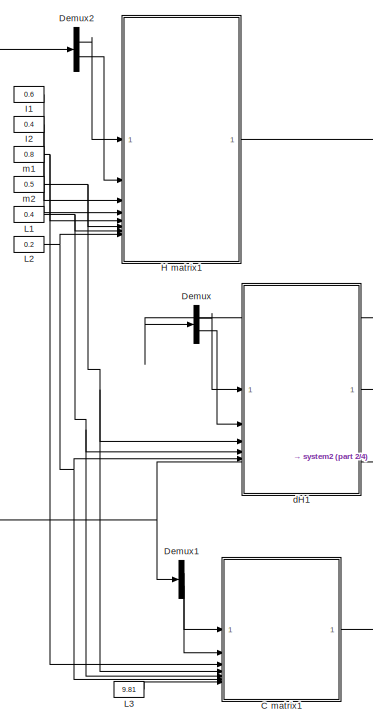
[diagram: root canvas - part 1/4, middle left region]
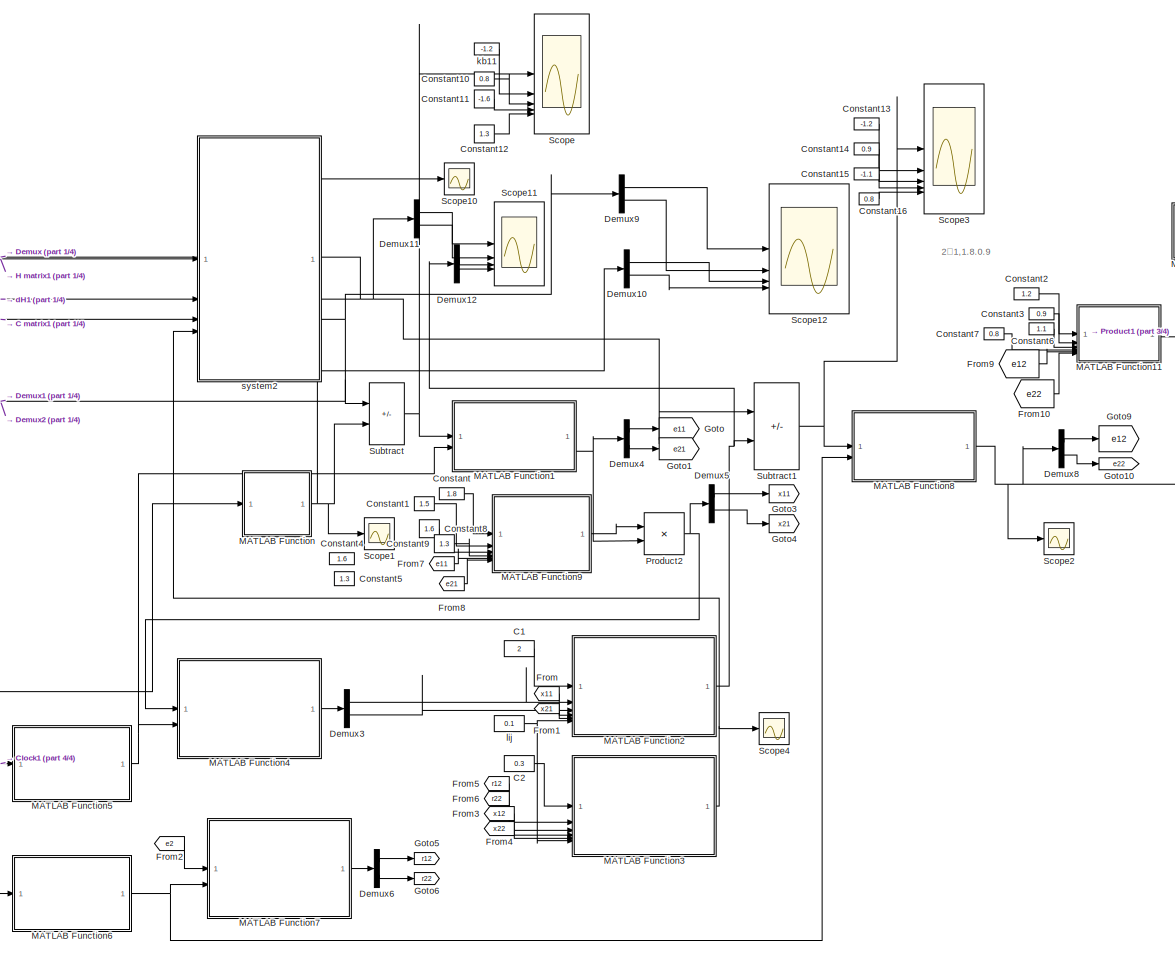
[diagram: root canvas - part 2/4, center side, full height]
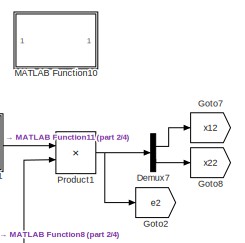
[diagram: root canvas - part 3/4, middle right region]
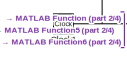
[diagram: root canvas - part 4/4, bottom left region]
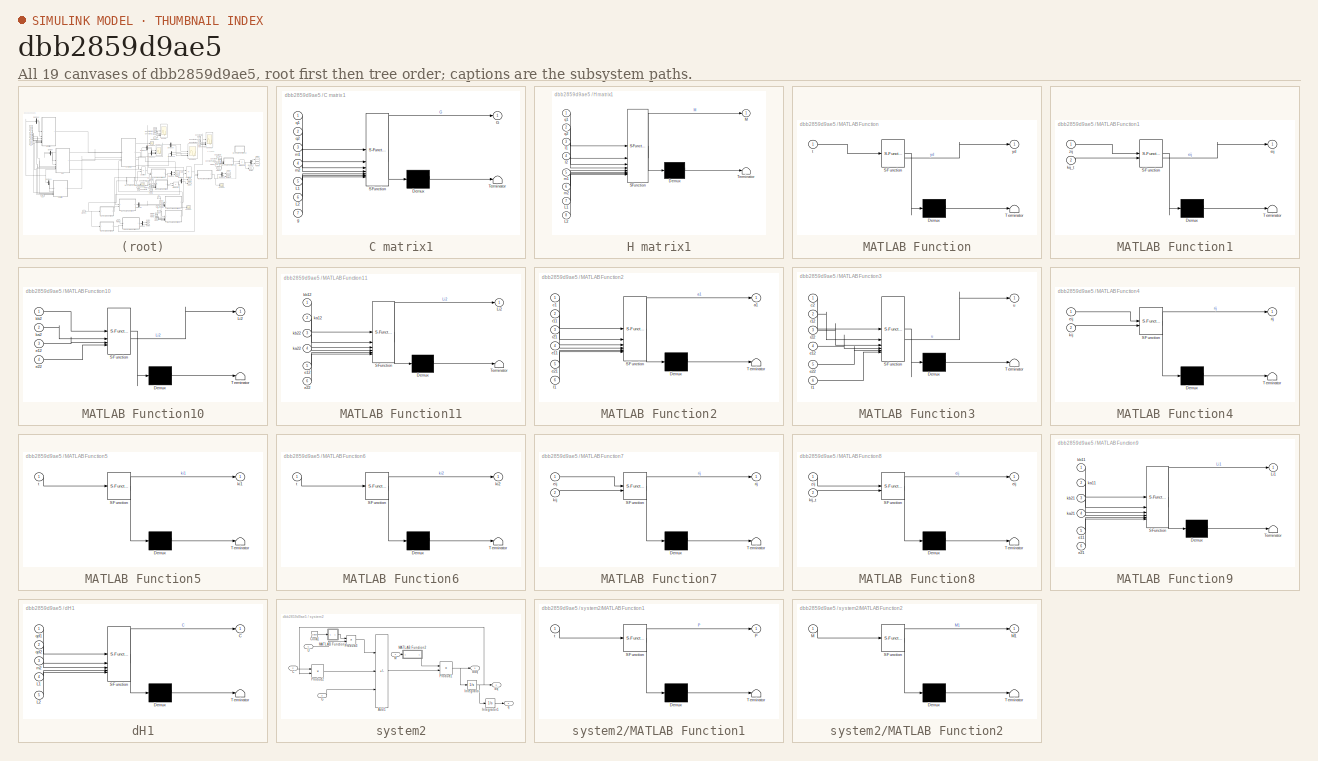
[diagram: thumbnail index - all 19 canvases of the model, root first then tree order]
MODEL slx_dbb2859d9ae5
KIND model
CONFIG AbsTol = auto
CONFIG EnableMultiTasking = off
CONFIG FixedStep = auto
CONFIG MaxStep = auto
CONFIG MinStep = auto
CONFIG RelTol = 1e-3
CONFIG SampleTimeConstraint = Unconstrained
CONFIG SolverName = VariableStepAuto
CONFIG StartTime = 0.0
CONFIG StopTime = 10.0
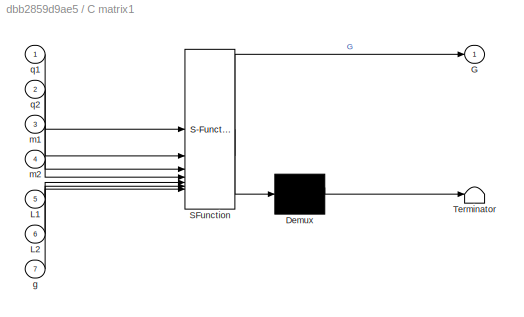
BLOCK [SubSystem] C matrix1
  ErrorFcn = Stateflow.Translate.translate
  PermitHierarchicalResolution = ExplicitOnly
  SFBlockType = MATLAB Function
  TreatAsAtomicUnit = on
BLOCK [Demux] C matrix1/ Demux 
  Outputs = 1
BLOCK [S-Function] C matrix1/ SFunction 
  EnableBusSupport = on
  FunctionName = sf_sfun
  PortCounts = [7 2]
  SFcnIsStateOwnerBlock = off
  SFunctionDeploymentMode = off
  Tag = Stateflow S-Function 10
BLOCK [Terminator] C matrix1/ Terminator 
BLOCK [Outport] C matrix1/G
BLOCK [Inport] C matrix1/L1
  Port = 5
BLOCK [Inport] C matrix1/L2
  Port = 6
BLOCK [Inport] C matrix1/g
  Port = 7
BLOCK [Inport] C matrix1/m1
  Port = 3
BLOCK [Inport] C matrix1/m2
  Port = 4
BLOCK [Inport] C matrix1/q1
BLOCK [Inport] C matrix1/q2
  Port = 2
BLOCK [Constant] C1
  Value = 2
BLOCK [Constant] C2
  Value = 0.3
BLOCK [Clock] Clock1
  Decimation = 30
BLOCK [Constant] Constant
  Value = 1.8
BLOCK [Constant] Constant1
  Value = 1.5
BLOCK [Constant] Constant10
  Value = 0.8
BLOCK [Constant] Constant11
  Value = -1.6
BLOCK [Constant] Constant12
  Value = 1.3
BLOCK [Constant] Constant13
  Value = -1.2
BLOCK [Constant] Constant14
  Value = 0.9
BLOCK [Constant] Constant15
  Value = -1.1
BLOCK [Constant] Constant16
  Value = 0.8
BLOCK [Constant] Constant2
  Value = 1.2
BLOCK [Constant] Constant3
  Value = 0.9
BLOCK [Constant] Constant4
  Commented = on
  Value = 1.6
BLOCK [Constant] Constant5
  Commented = on
  Value = 1.3
BLOCK [Constant] Constant6
  Value = 1.1
BLOCK [Constant] Constant7
  Value = 0.8
BLOCK [Constant] Constant8
  Value = 1.6
BLOCK [Constant] Constant9
  Value = 1.3
BLOCK [Demux] Demux
  Outputs = 2
BLOCK [Demux] Demux1
  Outputs = 2
BLOCK [Demux] Demux10
  Outputs = 2
BLOCK [Demux] Demux11
  Outputs = 2
BLOCK [Demux] Demux12
  Outputs = 2
BLOCK [Demux] Demux2
  Outputs = 2
BLOCK [Demux] Demux3
  Outputs = 2
BLOCK [Demux] Demux4
  Outputs = 2
BLOCK [Demux] Demux5
  Outputs = 2
BLOCK [Demux] Demux6
  Outputs = 2
BLOCK [Demux] Demux7
  Outputs = 2
BLOCK [Demux] Demux8
  Outputs = 2
BLOCK [Demux] Demux9
  Outputs = 2
BLOCK [From] From
  GotoTag = x11
BLOCK [From] From1
  GotoTag = x21
BLOCK [From] From10
  GotoTag = e22
BLOCK [From] From2
  GotoTag = e2
BLOCK [From] From3
  GotoTag = x12
BLOCK [From] From4
  GotoTag = x22
BLOCK [From] From5
  GotoTag = r12
BLOCK [From] From6
  GotoTag = r22
BLOCK [From] From7
  GotoTag = e11
BLOCK [From] From8
  GotoTag = e21
BLOCK [From] From9
  GotoTag = e12
BLOCK [Goto] Goto
  GotoTag = e11
BLOCK [Goto] Goto1
  GotoTag = e21
BLOCK [Goto] Goto10
  GotoTag = e22
BLOCK [Goto] Goto2
  GotoTag = e2
BLOCK [Goto] Goto3
  GotoTag = x11
BLOCK [Goto] Goto4
  GotoTag = x21
BLOCK [Goto] Goto5
  GotoTag = r12
BLOCK [Goto] Goto6
  GotoTag = r22
BLOCK [Goto] Goto7
  GotoTag = x12
BLOCK [Goto] Goto8
  GotoTag = x22
BLOCK [Goto] Goto9
  GotoTag = e12
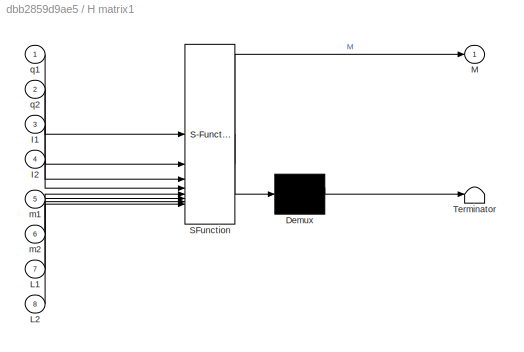
BLOCK [SubSystem] H matrix1
  ErrorFcn = Stateflow.Translate.translate
  PermitHierarchicalResolution = ExplicitOnly
  SFBlockType = MATLAB Function
  TreatAsAtomicUnit = on
BLOCK [Demux] H matrix1/ Demux 
  Outputs = 1
BLOCK [S-Function] H matrix1/ SFunction 
  EnableBusSupport = on
  FunctionName = sf_sfun
  PortCounts = [8 2]
  SFcnIsStateOwnerBlock = off
  SFunctionDeploymentMode = off
  Tag = Stateflow S-Function 11
BLOCK [Terminator] H matrix1/ Terminator 
BLOCK [Inport] H matrix1/I1
  Port = 3
BLOCK [Inport] H matrix1/I2
  Port = 4
BLOCK [Inport] H matrix1/L1
  Port = 7
BLOCK [Inport] H matrix1/L2
  Port = 8
BLOCK [Outport] H matrix1/M
BLOCK [Inport] H matrix1/m1
  Port = 5
BLOCK [Inport] H matrix1/m2
  Port = 6
BLOCK [Inport] H matrix1/q1
BLOCK [Inport] H matrix1/q2
  Port = 2
BLOCK [Constant] I1
  Value = 0.6
BLOCK [Constant] I2
  Value = 0.4
BLOCK [Constant] L1
  Value = 0.4
BLOCK [Constant] L2
  Value = 0.2
BLOCK [Constant] L3
  Value = 9.81
BLOCK [SubSystem] MATLAB Function
  ErrorFcn = Stateflow.Translate.translate
  PermitHierarchicalResolution = ExplicitOnly
  SFBlockType = MATLAB Function
  TreatAsAtomicUnit = on
BLOCK [Demux] MATLAB Function/ Demux 
  Outputs = 1
BLOCK [S-Function] MATLAB Function/ SFunction 
  EnableBusSupport = on
  FunctionName = sf_sfun
  PortCounts = [1 2]
  SFcnIsStateOwnerBlock = off
  SFunctionDeploymentMode = off
  Tag = Stateflow S-Function 2
BLOCK [Terminator] MATLAB Function/ Terminator 
BLOCK [Inport] MATLAB Function/t
BLOCK [Outport] MATLAB Function/yd
BLOCK [SubSystem] MATLAB Function1
  ErrorFcn = Stateflow.Translate.translate
  PermitHierarchicalResolution = ExplicitOnly
  SFBlockType = MATLAB Function
  TreatAsAtomicUnit = on
BLOCK [Demux] MATLAB Function1/ Demux 
  Outputs = 1
BLOCK [S-Function] MATLAB Function1/ SFunction 
  EnableBusSupport = on
  FunctionName = sf_sfun
  PortCounts = [2 2]
  SFcnIsStateOwnerBlock = off
  SFunctionDeploymentMode = off
  Tag = Stateflow S-Function 1
BLOCK [Terminator] MATLAB Function1/ Terminator 
BLOCK [Outport] MATLAB Function1/eij
BLOCK [Inport] MATLAB Function1/kij_t
  Port = 2
BLOCK [Inport] MATLAB Function1/zij
BLOCK [SubSystem] MATLAB Function10
  Commented = on
  ErrorFcn = Stateflow.Translate.translate
  PermitHierarchicalResolution = ExplicitOnly
  SFBlockType = MATLAB Function
  TreatAsAtomicUnit = on
BLOCK [Demux] MATLAB Function10/ Demux 
  Outputs = 1
BLOCK [S-Function] MATLAB Function10/ SFunction 
  EnableBusSupport = on
  FunctionName = sf_sfun
  PortCounts = [4 2]
  SFcnIsStateOwnerBlock = off
  SFunctionDeploymentMode = off
  Tag = Stateflow S-Function 14
BLOCK [Terminator] MATLAB Function10/ Terminator 
BLOCK [Outport] MATLAB Function10/Li2
BLOCK [Inport] MATLAB Function10/e12
  Port = 3
BLOCK [Inport] MATLAB Function10/e22
  Port = 4
BLOCK [Inport] MATLAB Function10/ka2
  Port = 2
BLOCK [Inport] MATLAB Function10/kb2
BLOCK [SubSystem] MATLAB Function11
  ErrorFcn = Stateflow.Translate.translate
  PermitHierarchicalResolution = ExplicitOnly
  SFBlockType = MATLAB Function
  TreatAsAtomicUnit = on
BLOCK [Demux] MATLAB Function11/ Demux 
  Outputs = 1
BLOCK [S-Function] MATLAB Function11/ SFunction 
  EnableBusSupport = on
  FunctionName = sf_sfun
  PortCounts = [6 2]
  SFcnIsStateOwnerBlock = off
  SFunctionDeploymentMode = off
  Tag = Stateflow S-Function 15
BLOCK [Terminator] MATLAB Function11/ Terminator 
BLOCK [Outport] MATLAB Function11/Li2
BLOCK [Inport] MATLAB Function11/e12
  Port = 5
BLOCK [Inport] MATLAB Function11/e22
  Port = 6
BLOCK [Inport] MATLAB Function11/ka12
  Port = 2
BLOCK [Inport] MATLAB Function11/ka22
  Port = 4
BLOCK [Inport] MATLAB Function11/kb12
BLOCK [Inport] MATLAB Function11/kb22
  Port = 3
BLOCK [SubSystem] MATLAB Function2
  ErrorFcn = Stateflow.Translate.translate
  PermitHierarchicalResolution = ExplicitOnly
  SFBlockType = MATLAB Function
  TreatAsAtomicUnit = on
BLOCK [Demux] MATLAB Function2/ Demux 
  Outputs = 1
BLOCK [S-Function] MATLAB Function2/ SFunction 
  EnableBusSupport = on
  FunctionName = sf_sfun
  PortCounts = [6 2]
  SFcnIsStateOwnerBlock = off
  SFunctionDeploymentMode = off
  Tag = Stateflow S-Function 3
BLOCK [Terminator] MATLAB Function2/ Terminator 
BLOCK [Outport] MATLAB Function2/a1
BLOCK [Inport] MATLAB Function2/c1
BLOCK [Inport] MATLAB Function2/e11
  Port = 4
BLOCK [Inport] MATLAB Function2/e21
  Port = 5
BLOCK [Inport] MATLAB Function2/l1
  Port = 6
BLOCK [Inport] MATLAB Function2/r11
  Port = 2
BLOCK [Inport] MATLAB Function2/r21
  Port = 3
BLOCK [SubSystem] MATLAB Function3
  ErrorFcn = Stateflow.Translate.translate
  PermitHierarchicalResolution = ExplicitOnly
  SFBlockType = MATLAB Function
  TreatAsAtomicUnit = on
BLOCK [Demux] MATLAB Function3/ Demux 
  Outputs = 1
BLOCK [S-Function] MATLAB Function3/ SFunction 
  EnableBusSupport = on
  FunctionName = sf_sfun
  PortCounts = [6 2]
  SFcnIsStateOwnerBlock = off
  SFunctionDeploymentMode = off
  Tag = Stateflow S-Function 4
BLOCK [Terminator] MATLAB Function3/ Terminator 
BLOCK [Inport] MATLAB Function3/c2
BLOCK [Inport] MATLAB Function3/e12
  Port = 4
BLOCK [Inport] MATLAB Function3/e22
  Port = 5
BLOCK [Inport] MATLAB Function3/l1
  Port = 6
BLOCK [Inport] MATLAB Function3/r12
  Port = 2
BLOCK [Inport] MATLAB Function3/r22
  Port = 3
BLOCK [Outport] MATLAB Function3/u
BLOCK [SubSystem] MATLAB Function4
  ErrorFcn = Stateflow.Translate.translate
  PermitHierarchicalResolution = ExplicitOnly
  SFBlockType = MATLAB Function
  TreatAsAtomicUnit = on
BLOCK [Demux] MATLAB Function4/ Demux 
  Outputs = 1
BLOCK [S-Function] MATLAB Function4/ SFunction 
  EnableBusSupport = on
  FunctionName = sf_sfun
  PortCounts = [2 2]
  SFcnIsStateOwnerBlock = off
  SFunctionDeploymentMode = off
  Tag = Stateflow S-Function 5
BLOCK [Terminator] MATLAB Function4/ Terminator 
BLOCK [Inport] MATLAB Function4/eij
BLOCK [Inport] MATLAB Function4/kij
  Port = 2
BLOCK [Outport] MATLAB Function4/rij
BLOCK [SubSystem] MATLAB Function5
  ErrorFcn = Stateflow.Translate.translate
  PermitHierarchicalResolution = ExplicitOnly
  SFBlockType = MATLAB Function
  TreatAsAtomicUnit = on
BLOCK [Demux] MATLAB Function5/ Demux 
  Outputs = 1
BLOCK [S-Function] MATLAB Function5/ SFunction 
  EnableBusSupport = on
  FunctionName = sf_sfun
  PortCounts = [1 2]
  SFcnIsStateOwnerBlock = off
  SFunctionDeploymentMode = off
  Tag = Stateflow S-Function 6
BLOCK [Terminator] MATLAB Function5/ Terminator 
BLOCK [Outport] MATLAB Function5/ki1
BLOCK [Inport] MATLAB Function5/t
BLOCK [SubSystem] MATLAB Function6
  ErrorFcn = Stateflow.Translate.translate
  PermitHierarchicalResolution = ExplicitOnly
  SFBlockType = MATLAB Function
  TreatAsAtomicUnit = on
BLOCK [Demux] MATLAB Function6/ Demux 
  Outputs = 1
BLOCK [S-Function] MATLAB Function6/ SFunction 
  EnableBusSupport = on
  FunctionName = sf_sfun
  PortCounts = [1 2]
  SFcnIsStateOwnerBlock = off
  SFunctionDeploymentMode = off
  Tag = Stateflow S-Function 7
BLOCK [Terminator] MATLAB Function6/ Terminator 
BLOCK [Outport] MATLAB Function6/ki2
BLOCK [Inport] MATLAB Function6/t
BLOCK [SubSystem] MATLAB Function7
  ErrorFcn = Stateflow.Translate.translate
  PermitHierarchicalResolution = ExplicitOnly
  SFBlockType = MATLAB Function
  TreatAsAtomicUnit = on
BLOCK [Demux] MATLAB Function7/ Demux 
  Outputs = 1
BLOCK [S-Function] MATLAB Function7/ SFunction 
  EnableBusSupport = on
  FunctionName = sf_sfun
  PortCounts = [2 2]
  SFcnIsStateOwnerBlock = off
  SFunctionDeploymentMode = off
  Tag = Stateflow S-Function 8
BLOCK [Terminator] MATLAB Function7/ Terminator 
BLOCK [Inport] MATLAB Function7/eij
BLOCK [Inport] MATLAB Function7/kij
  Port = 2
BLOCK [Outport] MATLAB Function7/rij
BLOCK [SubSystem] MATLAB Function8
  ErrorFcn = Stateflow.Translate.translate
  PermitHierarchicalResolution = ExplicitOnly
  SFBlockType = MATLAB Function
  TreatAsAtomicUnit = on
BLOCK [Demux] MATLAB Function8/ Demux 
  Outputs = 1
BLOCK [S-Function] MATLAB Function8/ SFunction 
  EnableBusSupport = on
  FunctionName = sf_sfun
  PortCounts = [2 2]
  SFcnIsStateOwnerBlock = off
  SFunctionDeploymentMode = off
  Tag = Stateflow S-Function 9
BLOCK [Terminator] MATLAB Function8/ Terminator 
BLOCK [Outport] MATLAB Function8/eij
BLOCK [Inport] MATLAB Function8/kij_t
  Port = 2
BLOCK [Inport] MATLAB Function8/zij
BLOCK [SubSystem] MATLAB Function9
  ErrorFcn = Stateflow.Translate.translate
  PermitHierarchicalResolution = ExplicitOnly
  SFBlockType = MATLAB Function
  TreatAsAtomicUnit = on
BLOCK [Demux] MATLAB Function9/ Demux 
  Outputs = 1
BLOCK [S-Function] MATLAB Function9/ SFunction 
  EnableBusSupport = on
  FunctionName = sf_sfun
  PortCounts = [6 2]
  SFcnIsStateOwnerBlock = off
  SFunctionDeploymentMode = off
  Tag = Stateflow S-Function 13
BLOCK [Terminator] MATLAB Function9/ Terminator 
BLOCK [Outport] MATLAB Function9/Li1
BLOCK [Inport] MATLAB Function9/e11
  Port = 5
BLOCK [Inport] MATLAB Function9/e21
  Port = 6
BLOCK [Inport] MATLAB Function9/ka11
  Port = 2
BLOCK [Inport] MATLAB Function9/ka21
  Port = 4
BLOCK [Inport] MATLAB Function9/kb11
BLOCK [Inport] MATLAB Function9/kb21
  Port = 3
BLOCK [Product] Product1
  Multiplication = Matrix(*)
  RndMeth = Zero
BLOCK [Product] Product2
  Multiplication = Matrix(*)
  RndMeth = Zero
BLOCK [Scope] Scope
  Floating = off
  NumInputPorts = 5
  ScopeSpecificationString = Simulink.scopes.TimeScopeBlockCfg('CurrentConfiguration', extmgr.ConfigurationSet(extmgr.Configuration('Core','General UI',true,'FigureColor',[1 1 1]),extmgr.Configuration('Core','Source UI',true),extmgr.Configuration('Sources','WiredSimulink',true,'DataLoggingVariableName','ScopeData1'),extmgr.Configuration('Visuals','Time Domain',true,'SerializedDisplays',{struct('MinYLimReal','-1.9625','MaxYLim...<+2062ch>
BLOCK [Scope] Scope1
  Floating = off
  NumInputPorts = 1
  ScopeSpecificationString = Simulink.scopes.TimeScopeBlockCfg('CurrentConfiguration', extmgr.ConfigurationSet(extmgr.Configuration('Core','General UI',true),extmgr.Configuration('Core','Source UI',true),extmgr.Configuration('Sources','WiredSimulink',true,'DataLoggingVariableName','ScopeData1'),extmgr.Configuration('Visuals','Time Domain',true,'SerializedDisplays',{struct('MinYLimReal','-1.83942','MaxYLimReal','1.9733','YLabe...<+1500ch>
BLOCK [Scope] Scope10
  Floating = off
  NumInputPorts = 1
  ScopeSpecificationString = Simulink.scopes.TimeScopeBlockCfg('CurrentConfiguration', extmgr.ConfigurationSet(extmgr.Configuration('Core','General UI',true),extmgr.Configuration('Core','Source UI',true),extmgr.Configuration('Sources','WiredSimulink',true,'DataLoggingVariableName','ScopeData17'),extmgr.Configuration('Visuals','Time Domain',true,'SerializedDisplays',{struct('MinYLimReal','-350788.70864','MaxYLimReal','374521.8...<+1512ch>
BLOCK [Scope] Scope11
  Floating = off
  NumInputPorts = 4
  ScopeSpecificationString = Simulink.scopes.TimeScopeBlockCfg('CurrentConfiguration', extmgr.ConfigurationSet(extmgr.Configuration('Core','General UI',true,'FigureColor',[1 1 1]),extmgr.Configuration('Core','Source UI',true),extmgr.Configuration('Sources','WiredSimulink',true,'DataLoggingVariableName','ScopeData18'),extmgr.Configuration('Visuals','Time Domain',true,'SerializedDisplays',{struct('MinYLimReal','-8.53429','MaxYL...<+1863ch>
BLOCK [Scope] Scope12
  Floating = off
  NumInputPorts = 4
  ScopeSpecificationString = Simulink.scopes.TimeScopeBlockCfg('CurrentConfiguration', extmgr.ConfigurationSet(extmgr.Configuration('Core','General UI',true,'FigureColor',[1 1 1]),extmgr.Configuration('Core','Source UI',true),extmgr.Configuration('Sources','WiredSimulink',true,'DataLoggingVariableName','ScopeData19'),extmgr.Configuration('Visuals','Time Domain',true,'SerializedDisplays',{struct('MinYLimReal','-1.5875','MaxYLi...<+1844ch>
BLOCK [Scope] Scope2
  Floating = off
  NumInputPorts = 1
  ScopeSpecificationString = Simulink.scopes.TimeScopeBlockCfg('CurrentConfiguration', extmgr.ConfigurationSet(extmgr.Configuration('Core','General UI',true),extmgr.Configuration('Core','Source UI',true),extmgr.Configuration('Sources','WiredSimulink',true,'DataLoggingVariableName','ScopeData2'),extmgr.Configuration('Visuals','Time Domain',true,'SerializedDisplays',{struct('MinYLimReal','-1.07036','MaxYLimReal','1.66604','YLab...<+1516ch>
BLOCK [Scope] Scope3
  Floating = off
  NumInputPorts = 5
  ScopeSpecificationString = Simulink.scopes.TimeScopeBlockCfg('CurrentConfiguration', extmgr.ConfigurationSet(extmgr.Configuration('Core','General UI',true,'FigureColor',[1 1 1]),extmgr.Configuration('Core','Source UI',true),extmgr.Configuration('Sources','WiredSimulink',true,'DataLoggingVariableName','ScopeData1'),extmgr.Configuration('Visuals','Time Domain',true,'SerializedDisplays',{struct('MinYLimReal','-1.59889','MaxYLi...<+2076ch>
BLOCK [Scope] Scope4
  Floating = off
  NumInputPorts = 1
  ScopeSpecificationString = Simulink.scopes.TimeScopeBlockCfg('CurrentConfiguration', extmgr.ConfigurationSet(extmgr.Configuration('Core','General UI',true),extmgr.Configuration('Core','Source UI',true),extmgr.Configuration('Sources','WiredSimulink',true,'DataLoggingVariableName','ScopeData1'),extmgr.Configuration('Visuals','Time Domain',true,'SerializedDisplays',{struct('MinYLimReal','-240.92392','MaxYLimReal','778.26862','...<+1501ch>
BLOCK [Sum] Subtract
  IconShape = rectangular
  Inputs = +-
BLOCK [Sum] Subtract1
  IconShape = rectangular
  Inputs = +-
BLOCK [SubSystem] dH1
  ErrorFcn = Stateflow.Translate.translate
  PermitHierarchicalResolution = ExplicitOnly
  SFBlockType = MATLAB Function
  TreatAsAtomicUnit = on
BLOCK [Demux] dH1/ Demux 
  Outputs = 1
BLOCK [S-Function] dH1/ SFunction 
  EnableBusSupport = on
  FunctionName = sf_sfun
  PortCounts = [5 2]
  SFcnIsStateOwnerBlock = off
  SFunctionDeploymentMode = off
  Tag = Stateflow S-Function 12
BLOCK [Terminator] dH1/ Terminator 
BLOCK [Outport] dH1/C
BLOCK [Inport] dH1/L1
  Port = 4
BLOCK [Inport] dH1/L2
  Port = 5
BLOCK [Inport] dH1/m2
  Port = 3
BLOCK [Inport] dH1/qd1
BLOCK [Inport] dH1/qd2
  Port = 2
BLOCK [Constant] kb11
  Value = -1.2
BLOCK [Constant] lij
  Value = 0.1
BLOCK [Constant] m1
  Value = 0.8
BLOCK [Constant] m2
  Value = 0.5
BLOCK [SubSystem] system2
BLOCK [Sum] system2/Add1
  IconShape = rectangular
  Inputs = +--
BLOCK [Inport] system2/C
  Port = 2
BLOCK [Clock] system2/Clock1
  Decimation = 30
BLOCK [Inport] system2/G
  Port = 3
BLOCK [Integrator] system2/Integrator
BLOCK [Integrator] system2/Integrator1
  InitialCondition = [-1.2;1.9]
BLOCK [Inport] system2/M
BLOCK [SubSystem] system2/MATLAB Function1
  ErrorFcn = Stateflow.Translate.translate
  PermitHierarchicalResolution = ExplicitOnly
  SFBlockType = MATLAB Function
  TreatAsAtomicUnit = on
BLOCK [Demux] system2/MATLAB Function1/ Demux 
  Outputs = 1
BLOCK [S-Function] system2/MATLAB Function1/ SFunction 
  EnableBusSupport = on
  FunctionName = sf_sfun
  PortCounts = [1 2]
  SFcnIsStateOwnerBlock = off
  SFunctionDeploymentMode = off
  Tag = Stateflow S-Function 16
BLOCK [Terminator] system2/MATLAB Function1/ Terminator 
BLOCK [Outport] system2/MATLAB Function1/P
BLOCK [Inport] system2/MATLAB Function1/t
BLOCK [SubSystem] system2/MATLAB Function2
  ErrorFcn = Stateflow.Translate.translate
  PermitHierarchicalResolution = ExplicitOnly
  SFBlockType = MATLAB Function
  TreatAsAtomicUnit = on
BLOCK [Demux] system2/MATLAB Function2/ Demux 
  Outputs = 1
BLOCK [S-Function] system2/MATLAB Function2/ SFunction 
  EnableBusSupport = on
  FunctionName = sf_sfun
  PortCounts = [1 2]
  SFcnIsStateOwnerBlock = off
  SFunctionDeploymentMode = off
  Tag = Stateflow S-Function 37
BLOCK [Terminator] system2/MATLAB Function2/ Terminator 
BLOCK [Inport] system2/MATLAB Function2/M
BLOCK [Outport] system2/MATLAB Function2/M1
BLOCK [Product] system2/Product1
  Multiplication = Matrix(*)
  RndMeth = Zero
BLOCK [Product] system2/Product2
  Multiplication = Matrix(*)
  RndMeth = Zero
BLOCK [Product] system2/Product3
  Multiplication = Matrix(*)
  RndMeth = Zero
BLOCK [Inport] system2/U
  Port = 4
BLOCK [Outport] system2/ddq
BLOCK [Outport] system2/dq
  Port = 2
BLOCK [Outport] system2/q
  Port = 3
ANNOTATION (root): 2，1,1.8.0.9
LINE C matrix1:1 -> system2:3
LINE C1:1 -> MATLAB Function2:1
LINE C2:1 -> MATLAB Function3:1
NET Clock1:1 -> MATLAB Function5:1, MATLAB Function6:1, MATLAB Function:1
LINE Constant10:1 -> Scope:3
LINE Constant11:1 -> Scope:4
LINE Constant12:1 -> Scope:5
LINE Constant13:1 -> Scope3:2
LINE Constant14:1 -> Scope3:3
LINE Constant15:1 -> Scope3:4
LINE Constant16:1 -> Scope3:5
LINE Constant1:1 -> MATLAB Function9:2
LINE Constant2:1 -> MATLAB Function11:1
LINE Constant3:1 -> MATLAB Function11:2
LINE Constant6:1 -> MATLAB Function11:3
LINE Constant7:1 -> MATLAB Function11:4
LINE Constant8:1 -> MATLAB Function9:3
LINE Constant9:1 -> MATLAB Function9:4
LINE Constant:1 -> MATLAB Function9:1
LINE Demux10:1 -> Scope12:3
LINE Demux10:2 -> Scope12:4
LINE Demux11:1 -> Scope11:1
LINE Demux11:2 -> Scope11:2
LINE Demux12:1 -> Scope11:3
LINE Demux12:2 -> Scope11:4
LINE Demux1:1 -> C matrix1:1
LINE Demux1:2 -> C matrix1:2
LINE Demux2:1 -> H matrix1:1
LINE Demux2:2 -> H matrix1:2
LINE Demux3:1 -> MATLAB Function2:2
LINE Demux3:2 -> MATLAB Function2:3
LINE Demux4:1 -> Goto:1
LINE Demux4:2 -> Goto1:1
LINE Demux5:1 -> Goto3:1
LINE Demux5:2 -> Goto4:1
LINE Demux6:1 -> Goto5:1
LINE Demux6:2 -> Goto6:1
LINE Demux7:1 -> Goto7:1
LINE Demux7:2 -> Goto8:1
LINE Demux8:1 -> Goto9:1
LINE Demux8:2 -> Goto10:1
LINE Demux9:1 -> Scope12:1
LINE Demux9:2 -> Scope12:2
LINE Demux:1 -> dH1:1
LINE Demux:2 -> dH1:2
LINE From10:1 -> MATLAB Function11:6
LINE From1:1 -> MATLAB Function2:5
LINE From2:1 -> MATLAB Function7:1
LINE From3:1 -> MATLAB Function3:4
LINE From4:1 -> MATLAB Function3:5
LINE From5:1 -> MATLAB Function3:2
LINE From6:1 -> MATLAB Function3:3
LINE From7:1 -> MATLAB Function9:5
LINE From8:1 -> MATLAB Function9:6
LINE From9:1 -> MATLAB Function11:5
LINE From:1 -> MATLAB Function2:4
LINE H matrix1:1 -> system2:1
LINE I1:1 -> H matrix1:3
LINE I2:1 -> H matrix1:4
NET L1:1 -> C matrix1:5, H matrix1:7, dH1:4
NET L2:1 -> C matrix1:6, H matrix1:8, dH1:5
LINE L3:1 -> C matrix1:7
LINE MATLAB Function11:1 -> Product1:1
NET MATLAB Function1:1 -> Demux4:1, Product2:2
NET MATLAB Function2:1 -> Demux12:1, Subtract1:2
NET MATLAB Function3:1 -> Scope4:1, system2:4
LINE MATLAB Function4:1 -> Demux3:1
NET MATLAB Function5:1 -> MATLAB Function1:2, MATLAB Function4:2
NET MATLAB Function6:1 -> MATLAB Function7:2, MATLAB Function8:2
LINE MATLAB Function7:1 -> Demux6:1
NET MATLAB Function8:1 -> Demux8:1, Product1:2, Scope2:1
LINE MATLAB Function9:1 -> Product2:1
NET MATLAB Function:1 -> Demux10:1, Scope1:1, Subtract:2
NET Product1:1 -> Demux7:1, Goto2:1
NET Product2:1 -> Demux5:1, MATLAB Function4:1
NET Subtract1:1 -> MATLAB Function8:1, Scope3:1
NET Subtract:1 -> MATLAB Function1:1, Scope:1
LINE dH1:1 -> system2:2
LINE kb11:1 -> Scope:2
NET lij:1 -> MATLAB Function2:6, MATLAB Function3:6
NET m1:1 -> C matrix1:3, H matrix1:5
NET m2:1 -> C matrix1:4, H matrix1:6, dH1:3
LINE system2/Add1:1 -> system2/Product1:2
LINE system2/C:1 -> system2/Product2:1
LINE system2/Clock1:1 -> system2/MATLAB Function1:1
LINE system2/G:1 -> system2/Add1:3
LINE system2/Integrator1:1 -> system2/q:1
NET system2/Integrator:1 -> system2/Integrator1:1, system2/Product2:2, system2/dq:1
LINE system2/M:1 -> system2/MATLAB Function2:1
LINE system2/MATLAB Function1:1 -> system2/Product3:1
LINE system2/MATLAB Function2:1 -> system2/Product1:1
NET system2/Product1:1 -> system2/Integrator:1, system2/ddq:1
LINE system2/Product2:1 -> system2/Add1:2
LINE system2/Product3:1 -> system2/Add1:1
LINE system2/U:1 -> system2/Product3:2
LINE system2:1 -> Scope10:1
NET system2:2 -> Demux11:1, Demux:1, Subtract1:1
NET system2:3 -> Demux1:1, Demux2:1, Demux9:1, Subtract:1
note: NET lines group one-source signal fan-out (src -> all destinations, sorted); 1:1 wires keep LINE
CHART H matrix1 states=1 transitions=1
  STATE_LABEL 'eML_blk_kernel()'
  STATE_LABEL 'SCRIPT:\nfunction M = inertia_matrix(q1,q2,I1, I2, m1, m2, L1, L2)\n    M11 = I1 + I2 + m1*(L1^2/4) + m2*(L1^2 + (L1^2/2) + L1*L2*cos(q2));\n    M12 = I2 + m2*(L1^2/4 + (1/2)*L1*L2*cos(q2));\n    M21 = M12;\n    M22 = I2 + m2*(L2^2/4);\n    M = [M11, M12; M21, M22];\nend\n'
CHART dH1 states=1 transitions=1
  STATE_LABEL 'eML_blk_kernel()'
  STATE_LABEL 'SCRIPT:\nfunction C = coriolis_matrix(qd1, qd2, m2, L1, L2)\n    c = (1/2)*m2*L1*L2*sin(qd2);\n    C11 = -c*qd2;\n    C12 = -c*(qd1 + qd2);\n    C21 = c*qd1;\n    C22 = 0;\n    C = [C11, C12; C21, C22];\nend'
CHART MATLAB Function9 states=1 transitions=1
  STATE_LABEL 'eML_blk_kernel()'
  STATE_LABEL 'SCRIPT:\nfunction Li1 = calculate_Lij(kb11, ka11,kb21,ka21,e11, e21)\n    % 根据公式计算 Lij\n    L11 = 1./((kb11 + e11).*(ka11 - e11));\n    L21 = 1./((kb21 + e21).*(ka21 - e21));\n    Li1 = diag([L11, L21]);\n    \nend'
CHART MATLAB Function10 states=1 transitions=1
  STATE_LABEL 'eML_blk_kernel()'
  STATE_LABEL 'SCRIPT:\nfunction Li2 = calculate_Lij(kb2, ka2, e12, e22)\n    % 根据公式计算 Lij\n    L12 = 1./((kb2 + e12).*(ka2 - e12));\n    L22 = 1./((kb2 + e22).*(ka2 - e22));\n    Li2 = diag([L12, L22]);\n    \nend'
CHART MATLAB Function11 states=1 transitions=1
  STATE_LABEL 'eML_blk_kernel()'
  STATE_LABEL 'SCRIPT:\nfunction Li2 = calculate_Lij(kb12, ka12,kb22, ka22, e12, e22)\n    % 根据公式计算 Lij\n    L12 = 1./((kb12 + e12).*(ka12 - e12));\n    L22 = 1./((kb22 + e22).*(ka22 - e22));\n    Li2 = diag([L12, L22]);\n    \nend'
CHART MATLAB Function1 states=1 transitions=1
  STATE_LABEL 'eML_blk_kernel()'
  STATE_LABEL 'SCRIPT:\nfunction eij = calculate_eij(zij, kij_t)\n    % 确保z为向量或标量形式\n    % 根据公式计算eij\n    eij = (1./kij_t).* atan(zij);\nend'
CHART system2/MATLAB Function1 states=1 transitions=1
  STATE_LABEL 'eML_blk_kernel()'
  STATE_LABEL 'SCRIPT:\nfunction P = P_t(t)\n% 函数功能：计算时变矩阵P(t)\n% 输入参数：\n%   t - 时间变量\n% 输出参数：\n%   P - 时变矩阵\n\nP = [0.6 + 0.1*sin(t), 0;\n     0, 0.4 + 0.1*cos(t)];\nend\n'
CHART system2/MATLAB Function2 states=1 transitions=1
  STATE_LABEL 'eML_blk_kernel()'
  STATE_LABEL 'SCRIPT:\nfunction M1 = fcn(M)\n%#codegen\n\n\nM1 = inv(M);\n'
CHART MATLAB Function states=1 transitions=1
  STATE_LABEL 'eML_blk_kernel()'
  STATE_LABEL 'SCRIPT:\nfunction yd = desired_trajectory(t)\n    % 计算期望轨迹的第一个元素\n    yd_1 = 0.5 * sin(t);\n    % 计算期望轨迹的第二个元\n    yd_2 = 0.8 * cos(t);\n    % 将两个元素组合成向量作为函数输出\n    yd = [yd_1; yd_2];\nend'
CHART MATLAB Function2 states=1 transitions=1
  STATE_LABEL 'eML_blk_kernel()'
  STATE_LABEL 'SCRIPT:\nfunction a1 = calculate_aij(c1,r11, r21, e11, e21,l1)\n    % 计算 rij 和 tan(eij) 的乘积\n    a11 = -c1 * (sqrt(abs(r11 * tan(e11))^2 + l1)) * r11 * tan(e11);\n    a21 = -c1 * (sqrt(abs(r21 * tan(e21))^2 + l1)) * r21 * tan(e21);\n    a1 =[a11; a21];\nend'
CHART MATLAB Function3 states=1 transitions=1
  STATE_LABEL 'eML_blk_kernel()'
  STATE_LABEL 'SCRIPT:\nfunction u = calculate_aij(c2,r12, r22, e12, e22,l1)\n    % 计算 rij 和 tan(eij) 的乘积\n    a12 = -c2 * (sqrt(abs(r12 * tan(e12))^2 + l1)) * r12 * tan(e12);\n    a22 = -c2 * (sqrt(abs(r22 * tan(e22))^2 + l1)) * r22 * tan(e22);\n    \n    u =[a12; a22];\nend'
CHART MATLAB Function4 states=1 transitions=1
  STATE_LABEL 'eML_blk_kernel()'
  STATE_LABEL 'SCRIPT:\nfunction rij = calculate_rij(eij, kij)\n    % 确保 eij 和 kij 为向量或标量形式\n    % 根据公式计算 rij\n    rij = (cos(eij).^(-2)).* (kij.^(-1)).* (1 + tan(kij.* eij).^2).^(-1);\n    % 确保 rij 大于0，若有小于0的值可进行修正等处理（这里简单取绝对值）\n    rij = abs(rij); \nend'
CHART MATLAB Function5 states=1 transitions=1
  STATE_LABEL 'eML_blk_kernel()'
  STATE_LABEL 'SCRIPT:\nfunction ki1 = calculate_ki1(t)\n    ki1 = (1 - 0.05)*exp(-3*t) + 0.05;\nend'
CHART MATLAB Function6 states=1 transitions=1
  STATE_LABEL 'eML_blk_kernel()'
  STATE_LABEL 'SCRIPT:\nfunction ki2 = calculate_ki2(t)\n    ki2 = (1 - 0.1)*exp(-2*t) + 0.1;\nend'
CHART MATLAB Function7 states=1 transitions=1
  STATE_LABEL 'eML_blk_kernel()'
  STATE_LABEL 'SCRIPT:\nfunction rij = calculate_rij(eij, kij)\n    % 确保 eij 和 kij 为向量或标量形式\n    % 根据公式计算 rij\n    rij = (cos(eij).^(-2)).* (kij.^(-1)).* (1 + tan(kij.* eij).^2).^(-1);\n    % 确保 rij 大于0，若有小于0的值可进行修正等处理（这里简单取绝对值）\n    rij = abs(rij); \nend'
CHART MATLAB Function8 states=1 transitions=1
  STATE_LABEL 'eML_blk_kernel()'
  STATE_LABEL 'SCRIPT:\nfunction eij = calculate_eij(zij, kij_t)\n    % 确保z为向量或标量形式\n    % 根据公式计算eij\n    eij = (1./kij_t).* atan(zij);\nend'
CHART C matrix1 states=1 transitions=1
  STATE_LABEL 'eML_blk_kernel()'
  STATE_LABEL 'SCRIPT:\nfunction G = gravity_vector(q1,q2,m1, m2, L1, L2, g)\n   \n    G1 = (1/2)*m1*g*L1*cos(q1) + m2*g*((L2/2) + L1*cos(q1));\n    G2 = (1/2)*m2*g*L2*cos(q1 + q2);\n    G = [G1; G2];\nend'
CHART  states=0 transitions=0
CHART  states=0 transitions=0
CHART  states=0 transitions=0
CHART  states=0 transitions=0
CHART  states=0 transitions=0
CHART  states=0 transitions=0
CHART  states=0 transitions=0
CHART  states=0 transitions=0
CHART  states=0 transitions=0
CHART  states=0 transitions=0
CHART  states=0 transitions=0
CHART  states=0 transitions=0
CHART  states=0 transitions=0
CHART  states=0 transitions=0
CHART  states=0 transitions=0
CHART  states=0 transitions=0
CHART  states=0 transitions=0
